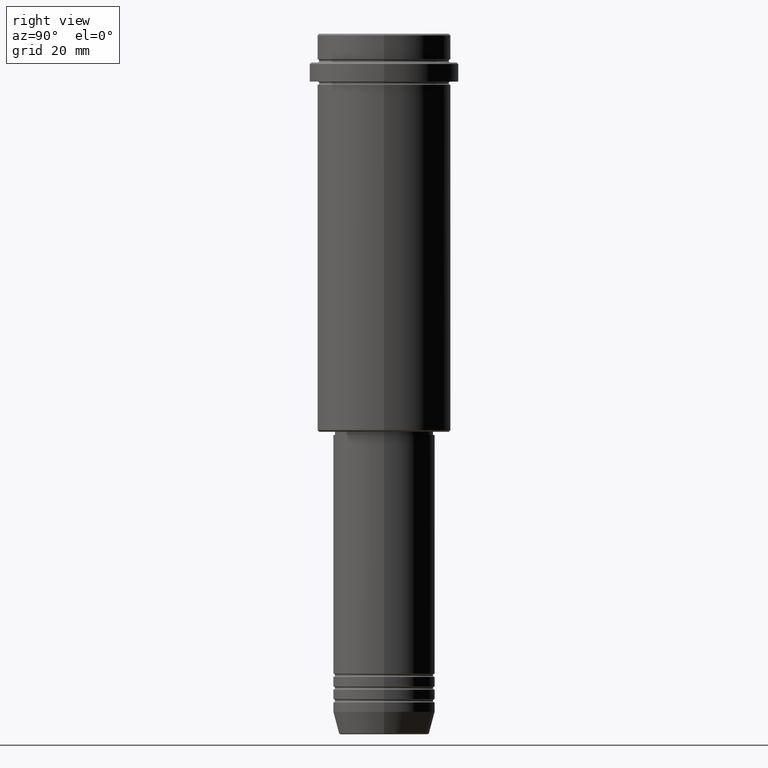
[diagram: clean part render]
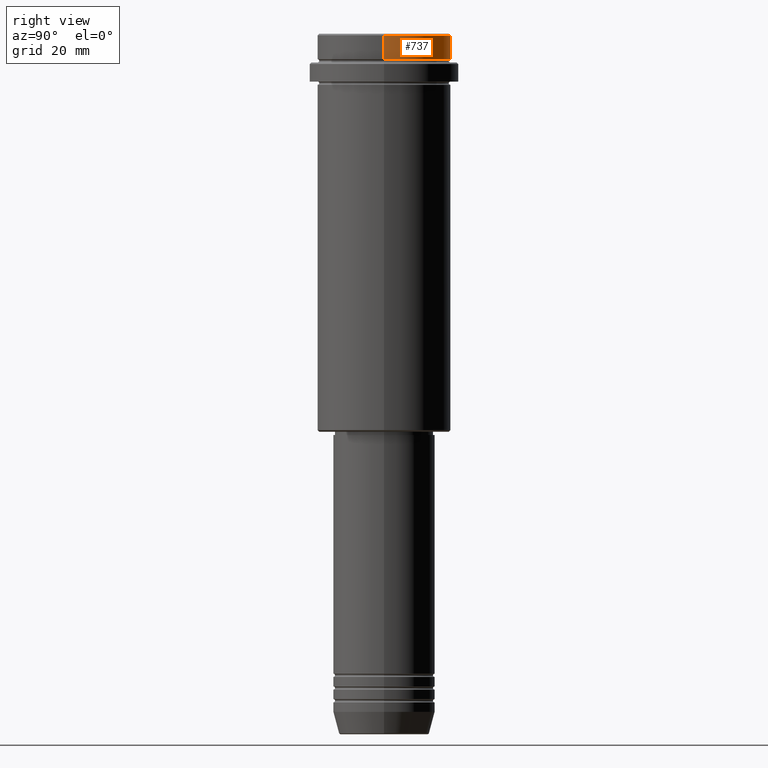
[diagram: same view with one face highlighted and labeled with its STEP entity id]
A machine part, right view. The second image highlights one B-rep face of the part: STEP entity #737.
In plain terms, the highlighted cylindrical surface (partial cylindrical patch) has radius 21 mm, axis along (-0, -0, 1).
Its self-contained STEP definition (entity closure, byte-faithful):
#13 = LINE ( 'NONE', #902, #62 ) ;
#62 = VECTOR ( 'NONE', #796, 1000.000000000000000 ) ;
#69 = DIRECTION ( 'NONE',  ( -0.000000000000000000, -0.000000000000000000, 1.000000000000000000 ) ) ;
#106 = VERTEX_POINT ( 'NONE', #933 ) ;
#166 = CYLINDRICAL_SURFACE ( 'NONE', #632, 20.99999999999999645 ) ;
#232 = VERTEX_POINT ( 'NONE', #1297 ) ;
#264 = ORIENTED_EDGE ( 'NONE', *, *, #389, .T. ) ;
#265 = CIRCLE ( 'NONE', #675, 20.99999999999999645 ) ;
#270 = FACE_OUTER_BOUND ( 'NONE', #608, .T. ) ;
#275 = DIRECTION ( 'NONE',  ( -0.000000000000000000, -0.000000000000000000, 1.000000000000000000 ) ) ;
#277 = DIRECTION ( 'NONE',  ( 1.000000000000000000, 0.000000000000000000, 0.000000000000000000 ) ) ;
#384 = ORIENTED_EDGE ( 'NONE', *, *, #886, .F. ) ;
#389 = EDGE_CURVE ( 'NONE', #232, #585, #265, .T. ) ;
#428 = EDGE_CURVE ( 'NONE', #106, #232, #1261, .T. ) ;
#495 = ORIENTED_EDGE ( 'NONE', *, *, #428, .T. ) ;
#538 = AXIS2_PLACEMENT_3D ( 'NONE', #1058, #69, #1040 ) ;
#585 = VERTEX_POINT ( 'NONE', #812 ) ;
#608 = EDGE_LOOP ( 'NONE', ( #721, #495, #264, #384 ) ) ;
#632 = AXIS2_PLACEMENT_3D ( 'NONE', #1059, #1151, #277 ) ;
#635 = VERTEX_POINT ( 'NONE', #1328 ) ;
#675 = AXIS2_PLACEMENT_3D ( 'NONE', #1337, #794, #757 ) ;
#721 = ORIENTED_EDGE ( 'NONE', *, *, #1057, .T. ) ;
#737 = ADVANCED_FACE ( 'NONE', ( #270 ), #166, .T. ) ;
#757 = DIRECTION ( 'NONE',  ( 1.000000000000000000, 0.000000000000000000, 0.000000000000000000 ) ) ;
#784 = VECTOR ( 'NONE', #275, 1000.000000000000000 ) ;
#794 = DIRECTION ( 'NONE',  ( 0.000000000000000000, 0.000000000000000000, -1.000000000000000000 ) ) ;
#796 = DIRECTION ( 'NONE',  ( -0.000000000000000000, -0.000000000000000000, 1.000000000000000000 ) ) ;
#812 = CARTESIAN_POINT ( 'NONE',  ( 20.99999999999999645, 0.000000000000000000, -0.5000000000000073275 ) ) ;
#886 = EDGE_CURVE ( 'NONE', #635, #585, #13, .T. ) ;
#902 = CARTESIAN_POINT ( 'NONE',  ( 20.99999999999999645, 0.000000000000000000, 0.000000000000000000 ) ) ;
#933 = CARTESIAN_POINT ( 'NONE',  ( -20.99999999999999645, 2.571758278209441267E-15, -7.999999999999998224 ) ) ;
#1040 = DIRECTION ( 'NONE',  ( 1.000000000000000000, 0.000000000000000000, 0.000000000000000000 ) ) ;
#1057 = EDGE_CURVE ( 'NONE', #635, #106, #1279, .T. ) ;
#1058 = CARTESIAN_POINT ( 'NONE',  ( 0.000000000000000000, 0.000000000000000000, -7.999999999999998224 ) ) ;
#1059 = CARTESIAN_POINT ( 'NONE',  ( 0.000000000000000000, 0.000000000000000000, 0.000000000000000000 ) ) ;
#1151 = DIRECTION ( 'NONE',  ( -0.000000000000000000, -0.000000000000000000, 1.000000000000000000 ) ) ;
#1261 = LINE ( 'NONE', #1340, #784 ) ;
#1279 = CIRCLE ( 'NONE', #538, 20.99999999999999645 ) ;
#1297 = CARTESIAN_POINT ( 'NONE',  ( -20.99999999999999645, 2.571758278209441267E-15, -0.5000000000000073275 ) ) ;
#1328 = CARTESIAN_POINT ( 'NONE',  ( 20.99999999999999645, 0.000000000000000000, -7.999999999999998224 ) ) ;
#1337 = CARTESIAN_POINT ( 'NONE',  ( 0.000000000000000000, 0.000000000000000000, -0.5000000000000073275 ) ) ;
#1340 = CARTESIAN_POINT ( 'NONE',  ( -20.99999999999999645, 2.571758278209441267E-15, 0.000000000000000000 ) ) ;